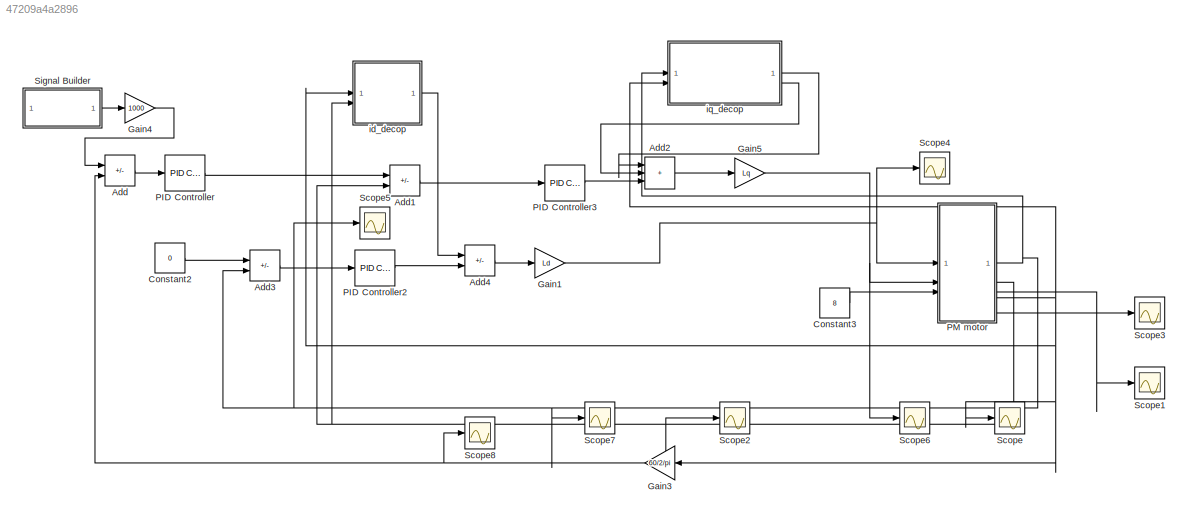
MODEL slx_47209a4a2896
KIND model
CONFIG AbsTol = auto
CONFIG EnableMultiTasking = off
CONFIG FixedStep = auto
CONFIG MaxStep = 1e-4
CONFIG MinStep = 1e-5
CONFIG RelTol = 1e-4
CONFIG SampleTimeConstraint = Unconstrained
CONFIG SolverName = ode45
CONFIG StartTime = 0.0
CONFIG StopTime = 2
BLOCK [Sum] Add
  IconShape = rectangular
  Inputs = +-
BLOCK [Sum] Add1
  IconShape = rectangular
  Inputs = +-
BLOCK [Sum] Add2
  IconShape = rectangular
  Inputs = +++
BLOCK [Sum] Add3
  IconShape = rectangular
  Inputs = +-
BLOCK [Sum] Add4
  IconShape = rectangular
  Inputs = -+
BLOCK [Constant] Constant2
  Value = 0
BLOCK [Constant] Constant3
  Value = 8
BLOCK [Gain] Gain1
  Gain = Ld
BLOCK [Gain] Gain3
  Gain = 60/2/pi
  NameLocation = top
BLOCK [Gain] Gain4
  Gain = 1000
BLOCK [Gain] Gain5
  Gain = Lq
BLOCK [Reference] PID Controller  REF=slpidlib/PID Controller
  LibrarySourceBlock = simulink/Continuous/PID Controller
  SourceBlock = slpidlib/PID Controller
  SourceType = PID 1dof
BLOCK [Reference] PID Controller2  REF=slpidlib/PID Controller
  LibrarySourceBlock = simulink/Continuous/PID Controller
  SourceBlock = slpidlib/PID Controller
  SourceType = PID 1dof
BLOCK [Reference] PID Controller3  REF=slpidlib/PID Controller
  LibrarySourceBlock = simulink/Continuous/PID Controller
  SourceBlock = slpidlib/PID Controller
  SourceType = PID 1dof
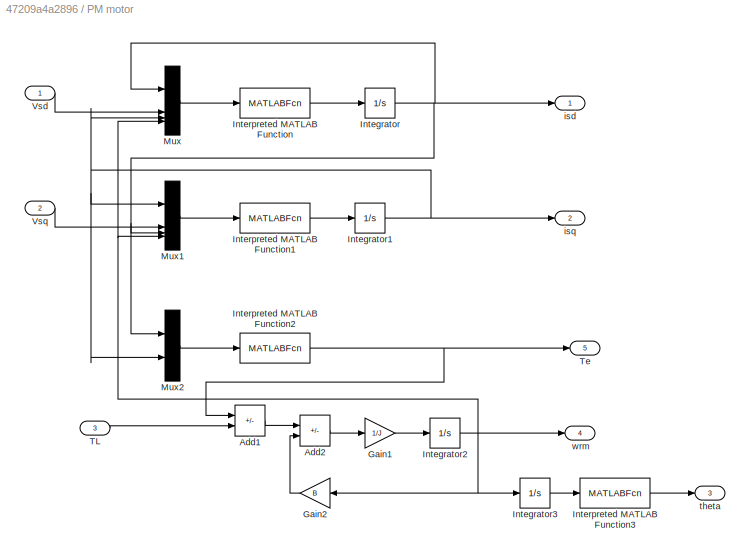
BLOCK [SubSystem] PM motor
BLOCK [Sum] PM motor/Add1
  IconShape = rectangular
  Inputs = +-
BLOCK [Sum] PM motor/Add2
  IconShape = rectangular
  Inputs = +-
BLOCK [Gain] PM motor/Gain1
  Gain = 1/J
BLOCK [Gain] PM motor/Gain2
  Gain = B
  NameLocation = top
BLOCK [Integrator] PM motor/Integrator
BLOCK [Integrator] PM motor/Integrator1
BLOCK [Integrator] PM motor/Integrator2
BLOCK [Integrator] PM motor/Integrator3
BLOCK [MATLABFcn] PM motor/Interpreted MATLAB Function
  MATLABFcn = -(Rs/Ld)*u(1) + (Lq/Ld)*u(3)*u(4) + u(2)/Ld
BLOCK [MATLABFcn] PM motor/Interpreted MATLAB Function1
  MATLABFcn = -(Rs/Lq)*u(1) - (Ld/Lq)*u(3)*u(4) - (fe/Lq)*u(4) + u(2)/Lq
BLOCK [MATLABFcn] PM motor/Interpreted MATLAB Function2
  MATLABFcn = 1.5*fe*u(2) + 1.5*(Ld-Lq)*u(1)*u(2)
BLOCK [MATLABFcn] PM motor/Interpreted MATLAB Function3
  MATLABFcn = mod(u, 2*pi)
BLOCK [Mux] PM motor/Mux
  DisplayOption = bar
BLOCK [Mux] PM motor/Mux1
  DisplayOption = bar
BLOCK [Mux] PM motor/Mux2
  DisplayOption = bar
  Inputs = 2
BLOCK [Inport] PM motor/TL
  Port = 3
BLOCK [Outport] PM motor/Te
  Port = 5
BLOCK [Inport] PM motor/Vsd
BLOCK [Inport] PM motor/Vsq
  Port = 2
BLOCK [Outport] PM motor/isd
BLOCK [Outport] PM motor/isq
  Port = 2
BLOCK [Outport] PM motor/theta
  Port = 3
BLOCK [Outport] PM motor/wrm
  Port = 4
BLOCK [Scope] Scope
  Floating = off
  NumInputPorts = 1
  ScopeSpecificationString = Simulink.scopes.TimeScopeBlockCfg('CurrentConfiguration', extmgr.ConfigurationSet(extmgr.Configuration('Core','General UI',true),extmgr.Configuration('Core','Source UI',true),extmgr.Configuration('Sources','WiredSimulink',true),extmgr.Configuration('Visuals','Time Domain',true,'SerializedDisplays',{struct('MinYLimReal','-13.42407','MaxYLimReal','112.62973','YLabelReal','','MinYLimMag','0.00000','M...<+1413ch>
BLOCK [Scope] Scope1
  Floating = off
  NumInputPorts = 1
  ScopeSpecificationString = Simulink.scopes.TimeScopeBlockCfg('CurrentConfiguration', extmgr.ConfigurationSet(extmgr.Configuration('Core','General UI',true),extmgr.Configuration('Core','Source UI',true),extmgr.Configuration('Sources','WiredSimulink',true,'DataLoggingVariableName','ScopeData1'),extmgr.Configuration('Visuals','Time Domain',true,'SerializedDisplays',{struct('MinYLimReal','-0.7854','MaxYLimReal','7.06858','YLabe...<+1440ch>
BLOCK [Scope] Scope2
  Floating = off
  NumInputPorts = 1
  ScopeSpecificationString = Simulink.scopes.TimeScopeBlockCfg('CurrentConfiguration', extmgr.ConfigurationSet(extmgr.Configuration('Core','General UI',true),extmgr.Configuration('Core','Source UI',true),extmgr.Configuration('Sources','WiredSimulink',true,'DataLoggingVariableName','ScopeData3'),extmgr.Configuration('Visuals','Time Domain',true,'SerializedDisplays',{struct('MinYLimReal','2.45458','MaxYLimReal','2.75251','YLabe...<+1440ch>
BLOCK [Scope] Scope3
  Floating = off
  NumInputPorts = 1
  ScopeSpecificationString = Simulink.scopes.TimeScopeBlockCfg('CurrentConfiguration', extmgr.ConfigurationSet(extmgr.Configuration('Core','General UI',true),extmgr.Configuration('Core','Source UI',true),extmgr.Configuration('Sources','WiredSimulink',true,'DataLoggingVariableName','ScopeData5'),extmgr.Configuration('Visuals','Time Domain',true,'SerializedDisplays',{struct('MinYLimReal','5.73634','MaxYLimReal','10.88361','YLab...<+1444ch>
BLOCK [Scope] Scope4
  Floating = off
  NumInputPorts = 1
  ScopeSpecificationString = Simulink.scopes.TimeScopeBlockCfg('CurrentConfiguration', extmgr.ConfigurationSet(extmgr.Configuration('Core','General UI',true),extmgr.Configuration('Core','Source UI',true),extmgr.Configuration('Sources','WiredSimulink',true,'DataLoggingVariableName','ScopeData7'),extmgr.Configuration('Visuals','Time Domain',true,'SerializedDisplays',{struct('MinYLimReal','-0.7854','MaxYLimReal','7.06858','YLabe...<+1475ch>
BLOCK [Scope] Scope5
  Floating = off
  NumInputPorts = 1
  ScopeSpecificationString = Simulink.scopes.TimeScopeBlockCfg('CurrentConfiguration', extmgr.ConfigurationSet(extmgr.Configuration('Core','General UI',true),extmgr.Configuration('Core','Source UI',true),extmgr.Configuration('Sources','WiredSimulink',true,'DataLoggingVariableName','ScopeData2'),extmgr.Configuration('Visuals','Time Domain',true,'SerializedDisplays',{struct('MinYLimReal','-13.83751','MaxYLimReal','25.43451','YL...<+1448ch>
BLOCK [Scope] Scope6
  Floating = off
  NumInputPorts = 1
  ScopeSpecificationString = Simulink.scopes.TimeScopeBlockCfg('CurrentConfiguration', extmgr.ConfigurationSet(extmgr.Configuration('Core','General UI',true),extmgr.Configuration('Core','Source UI',true),extmgr.Configuration('Sources','WiredSimulink',true,'DataLoggingVariableName','ScopeData8'),extmgr.Configuration('Visuals','Time Domain',true,'SerializedDisplays',{struct('MinYLimReal','-12890.46607','MaxYLimReal','95160.6504...<+1498ch>
BLOCK [Scope] Scope7
  Floating = off
  NumInputPorts = 1
  ScopeSpecificationString = Simulink.scopes.TimeScopeBlockCfg('CurrentConfiguration', extmgr.ConfigurationSet(extmgr.Configuration('Core','General UI',true),extmgr.Configuration('Core','Source UI',true),extmgr.Configuration('Sources','WiredSimulink',true,'DataLoggingVariableName','ScopeData4'),extmgr.Configuration('Visuals','Time Domain',true,'SerializedDisplays',{struct('MinYLimReal','-0.00000000000000004','MaxYLimReal','0....<+1538ch>
BLOCK [Scope] Scope8
  Floating = off
  NumInputPorts = 1
  ScopeSpecificationString = Simulink.scopes.TimeScopeBlockCfg('CurrentConfiguration', extmgr.ConfigurationSet(extmgr.Configuration('Core','General UI',true),extmgr.Configuration('Core','Source UI',true),extmgr.Configuration('Sources','WiredSimulink',true,'DataLoggingVariableName','ScopeData6'),extmgr.Configuration('Visuals','Time Domain',true,'SerializedDisplays',{struct('MinYLimReal','-127.48402','MaxYLimReal','1125.48036',...<+1455ch>
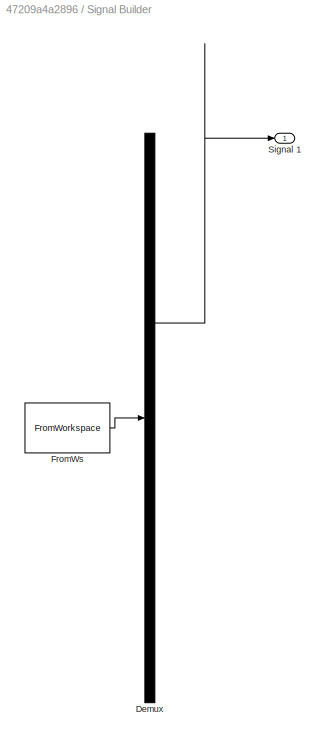
BLOCK [SubSystem] Signal Builder
  ClipboardFcn = sigbuilder_block('clipboard');
  CloseFcn = sigbuilder_block('close');
  ContinueFcn = sigbuilder_block('continue');
  CopyFcn = sigbuilder_block('copy');
  DeleteFcn = sigbuilder_block('delete');
  LoadFcn = sigbuilder_block('load');
  MaskHideContents = on
  ModelCloseFcn = sigbuilder_block('modelClose');
  NameChangeFcn = sigbuilder_block('namechange');
  OpenFcn = sigbuilder_block('open',[437.6 199.2 550.4 400 ]);
  PauseFcn = sigbuilder_block('pause');
  PreSaveFcn = sigbuilder_block('preSave');
  StartFcn = sigbuilder_block('start');
  StopFcn = sigbuilder_block('stop');
  Tag = STV Subsys
BLOCK [Demux] Signal Builder/Demux
  DisplayOption = none
  Outputs = 1
  Tag = STV Demux
BLOCK [FromWorkspace] Signal Builder/FromWs
  Tag = STV FromWs
  VariableName = tuvar
BLOCK [Outport] Signal Builder/Signal 1
  Tag = STV Outport
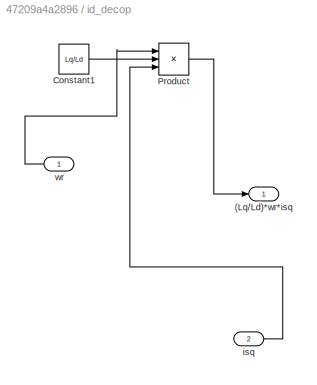
BLOCK [SubSystem] id_decop
BLOCK [Outport] id_decop/(Lq//Ld)*wr*isq
BLOCK [Constant] id_decop/Constant1
  Value = Lq/Ld
BLOCK [Product] id_decop/Product
  Inputs = 3
BLOCK [Inport] id_decop/isq
  Port = 2
BLOCK [Inport] id_decop/wr
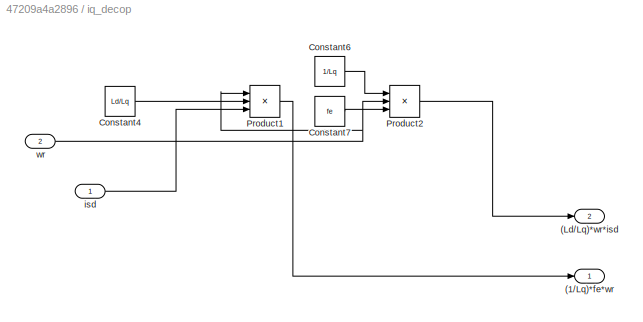
BLOCK [SubSystem] iq_decop
BLOCK [Outport] iq_decop/(1//Lq)*fe*wr
BLOCK [Outport] iq_decop/(Ld//Lq)*wr*isd
  Port = 2
BLOCK [Constant] iq_decop/Constant4
  Value = Ld/Lq
BLOCK [Constant] iq_decop/Constant6
  Value = 1/Lq
BLOCK [Constant] iq_decop/Constant7
  Value = fe
BLOCK [Product] iq_decop/Product1
  Inputs = 3
BLOCK [Product] iq_decop/Product2
  Inputs = 3
BLOCK [Inport] iq_decop/isd
BLOCK [Inport] iq_decop/wr
  Port = 2
LINE Add1:1 -> PID Controller3:1
LINE Add2:1 -> Gain5:1
LINE Add3:1 -> PID Controller2:1
LINE Add4:1 -> Gain1:1
LINE Add:1 -> PID Controller:1
LINE Constant2:1 -> Add3:1
LINE Constant3:1 -> PM motor:3
NET Gain1:1 -> PM motor:1, Scope4:1
NET Gain3:1 -> Add:2, Scope8:1
LINE Gain4:1 -> Add:1
NET Gain5:1 -> PM motor:2, Scope6:1
LINE PID Controller2:1 -> Add4:2
LINE PID Controller3:1 -> Add2:3
LINE PID Controller:1 -> Add1:1
LINE PM motor/Add1:1 -> PM motor/Add2:1
LINE PM motor/Add2:1 -> PM motor/Gain1:1
LINE PM motor/Gain1:1 -> PM motor/Integrator2:1
LINE PM motor/Gain2:1 -> PM motor/Add2:2
NET PM motor/Integrator1:1 -> PM motor/Mux1:1, PM motor/Mux2:2, PM motor/Mux:3, PM motor/isq:1
NET PM motor/Integrator2:1 -> PM motor/Gain2:1, PM motor/Integrator3:1, PM motor/Mux1:4, PM motor/Mux:4, PM motor/wrm:1
LINE PM motor/Integrator3:1 -> PM motor/Interpreted MATLAB Function3:1
NET PM motor/Integrator:1 -> PM motor/Mux1:3, PM motor/Mux2:1, PM motor/Mux:1, PM motor/isd:1
LINE PM motor/Interpreted MATLAB Function1:1 -> PM motor/Integrator1:1
NET PM motor/Interpreted MATLAB Function2:1 -> PM motor/Add1:1, PM motor/Te:1
LINE PM motor/Interpreted MATLAB Function3:1 -> PM motor/theta:1
LINE PM motor/Interpreted MATLAB Function:1 -> PM motor/Integrator:1
LINE PM motor/Mux1:1 -> PM motor/Interpreted MATLAB Function1:1
LINE PM motor/Mux2:1 -> PM motor/Interpreted MATLAB Function2:1
LINE PM motor/Mux:1 -> PM motor/Interpreted MATLAB Function:1
LINE PM motor/TL:1 -> PM motor/Add1:2
LINE PM motor/Vsd:1 -> PM motor/Mux:2
LINE PM motor/Vsq:1 -> PM motor/Mux1:2
NET PM motor:1 -> Add3:2, Scope5:1, Scope7:1, iq_decop:1
NET PM motor:2 -> Add1:2, Scope2:1, id_decop:2
LINE PM motor:3 -> Scope1:1
NET PM motor:4 -> Gain3:1, Scope:1, id_decop:1, iq_decop:2
LINE PM motor:5 -> Scope3:1
LINE Signal Builder:1 -> Gain4:1
LINE id_decop/Constant1:1 -> id_decop/Product:2
LINE id_decop/Product:1 -> id_decop/(Lq//Ld)*wr*isq:1
LINE id_decop/isq:1 -> id_decop/Product:3
LINE id_decop/wr:1 -> id_decop/Product:1
LINE id_decop:1 -> Add4:1
LINE iq_decop/Constant4:1 -> iq_decop/Product1:2
LINE iq_decop/Constant6:1 -> iq_decop/Product2:1
LINE iq_decop/Constant7:1 -> iq_decop/Product2:3
LINE iq_decop/Product1:1 -> iq_decop/(1//Lq)*fe*wr:1
LINE iq_decop/Product2:1 -> iq_decop/(Ld//Lq)*wr*isd:1
LINE iq_decop/isd:1 -> iq_decop/Product1:3
NET iq_decop/wr:1 -> iq_decop/Product1:1, iq_decop/Product2:2
LINE iq_decop:1 -> Add2:1
LINE iq_decop:2 -> Add2:2
note: NET lines group one-source signal fan-out (src -> all destinations, sorted); 1:1 wires keep LINE
